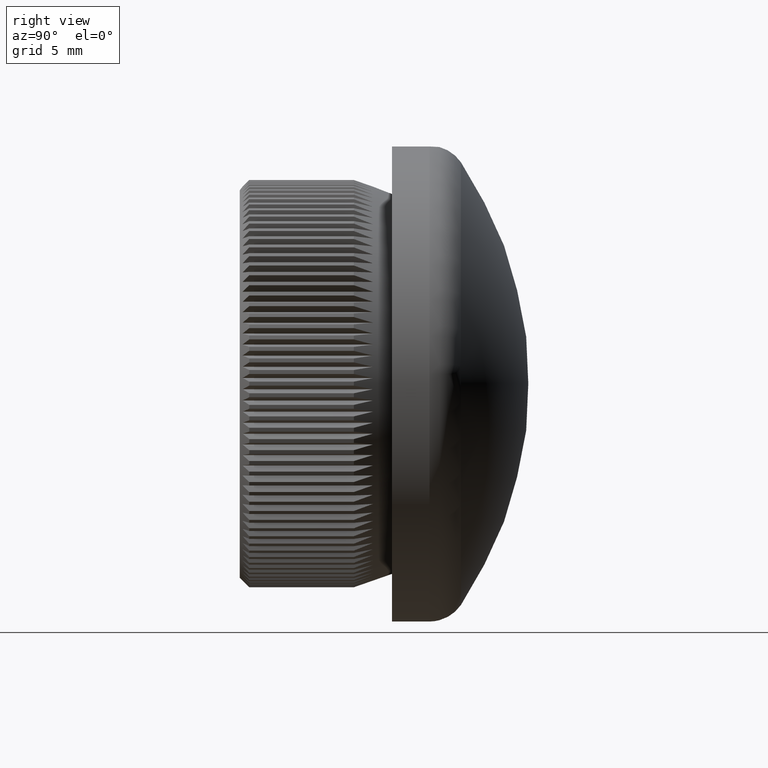
[diagram: clean part render]
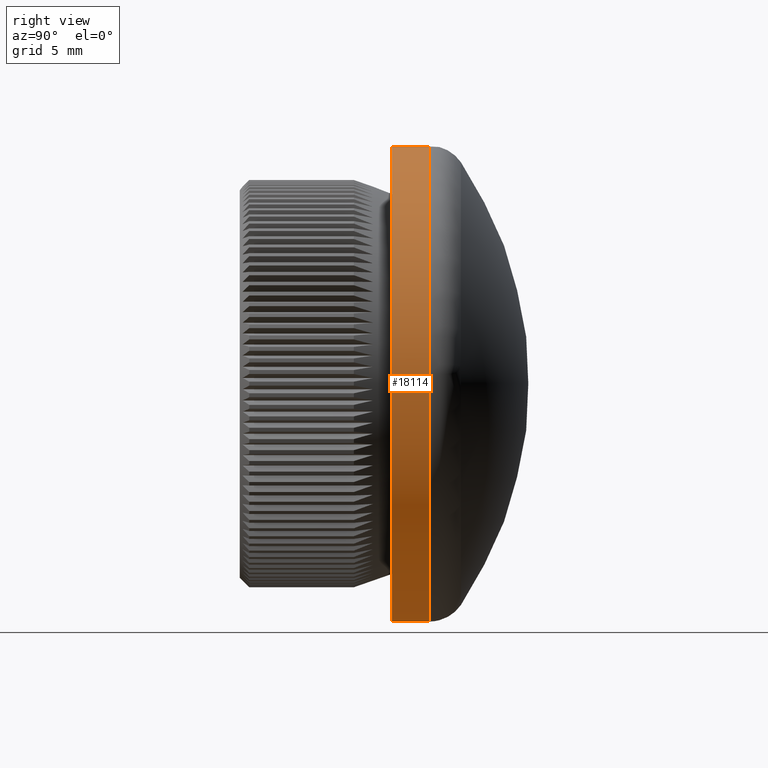
[diagram: same view with one face highlighted and labeled with its STEP entity id]
A machine part, right view. The second image highlights one B-rep face of the part: STEP entity #18114.
In plain terms, the highlighted cylindrical surface (bore or boss wall) has radius 12.5 mm, axis along (-0, -1, -0).
Its self-contained STEP definition (entity closure, byte-faithful):
#137 = ORIENTED_EDGE ( 'NONE', *, *, #13535, .T. ) ;
#580 = DIRECTION ( 'NONE',  ( -0.000000000000000000, -1.000000000000000000, -0.000000000000000000 ) ) ;
#884 = AXIS2_PLACEMENT_3D ( 'NONE', #11740, #13576, #13413 ) ;
#1678 = FACE_OUTER_BOUND ( 'NONE', #23532, .T. ) ;
#3134 = CARTESIAN_POINT ( 'NONE',  ( 0.000000000000000000, 9.974097089045827147, -12.50000000000000178 ) ) ;
#4163 = CARTESIAN_POINT ( 'NONE',  ( 0.000000000000000000, 9.974097089045827147, 0.000000000000000000 ) ) ;
#4238 = CIRCLE ( 'NONE', #8973, 12.50000000000000000 ) ;
#5251 = CIRCLE ( 'NONE', #10134, 12.50000000000000178 ) ;
#6524 = VERTEX_POINT ( 'NONE', #16251 ) ;
#7598 = DIRECTION ( 'NONE',  ( 0.000000000000000000, 0.000000000000000000, -1.000000000000000000 ) ) ;
#7900 = CARTESIAN_POINT ( 'NONE',  ( 0.000000000000000000, 8.000000000000000000, 0.000000000000000000 ) ) ;
#8973 = AXIS2_PLACEMENT_3D ( 'NONE', #7900, #13465, #20893 ) ;
#10134 = AXIS2_PLACEMENT_3D ( 'NONE', #4163, #580, #7598 ) ;
#10639 = EDGE_LOOP ( 'NONE', ( #20659 ) ) ;
#11740 = CARTESIAN_POINT ( 'NONE',  ( 0.000000000000000000, 0.000000000000000000, 0.000000000000000000 ) ) ;
#13413 = DIRECTION ( 'NONE',  ( 0.000000000000000000, 0.000000000000000000, -1.000000000000000000 ) ) ;
#13465 = DIRECTION ( 'NONE',  ( -0.000000000000000000, -1.000000000000000000, -0.000000000000000000 ) ) ;
#13535 = EDGE_CURVE ( 'NONE', #23002, #23002, #5251, .T. ) ;
#13576 = DIRECTION ( 'NONE',  ( -0.000000000000000000, -1.000000000000000000, -0.000000000000000000 ) ) ;
#16251 = CARTESIAN_POINT ( 'NONE',  ( 0.000000000000000000, 8.000000000000000000, -12.50000000000000000 ) ) ;
#17059 = CYLINDRICAL_SURFACE ( 'NONE', #884, 12.50000000000000178 ) ;
#18114 = ADVANCED_FACE ( 'NONE', ( #1678, #20213 ), #17059, .T. ) ;
#18647 = EDGE_CURVE ( 'NONE', #6524, #6524, #4238, .T. ) ;
#20213 = FACE_OUTER_BOUND ( 'NONE', #10639, .T. ) ;
#20659 = ORIENTED_EDGE ( 'NONE', *, *, #18647, .F. ) ;
#20893 = DIRECTION ( 'NONE',  ( 0.000000000000000000, 0.000000000000000000, -1.000000000000000000 ) ) ;
#23002 = VERTEX_POINT ( 'NONE', #3134 ) ;
#23532 = EDGE_LOOP ( 'NONE', ( #137 ) ) ;